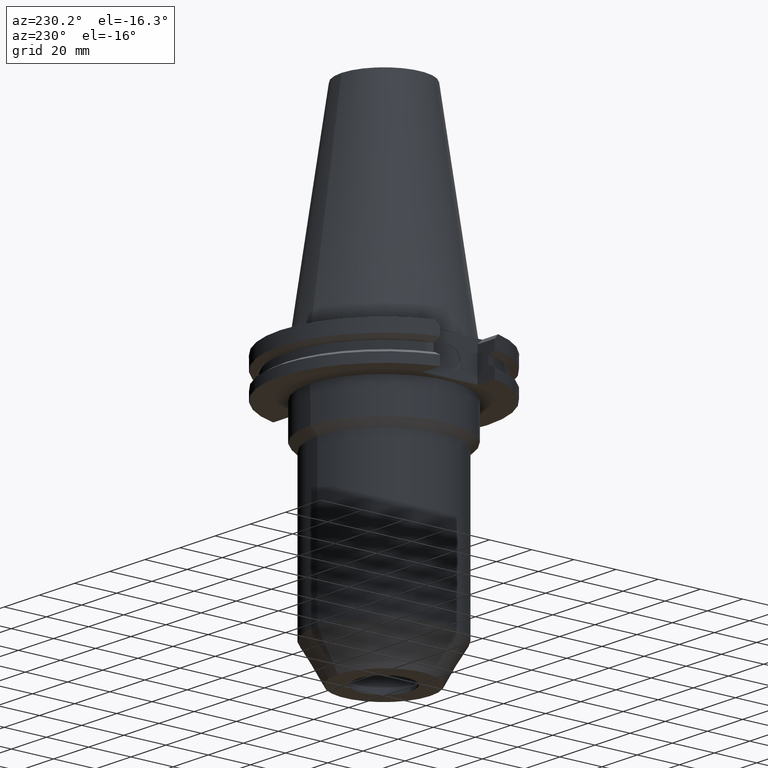
[diagram: clean part render]
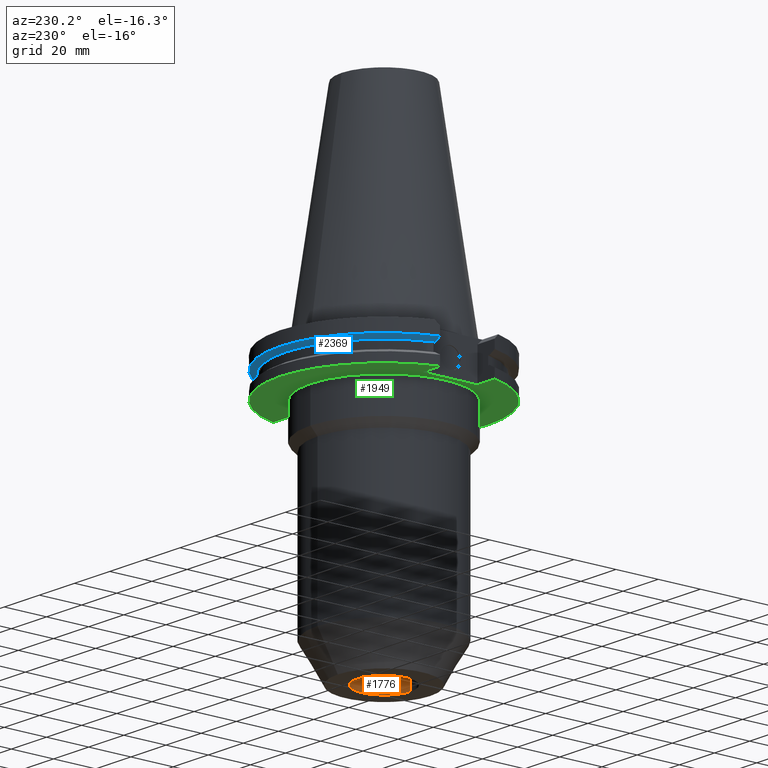
[diagram: same view with three faces highlighted in distinct colors, each labeled with its STEP entity id]
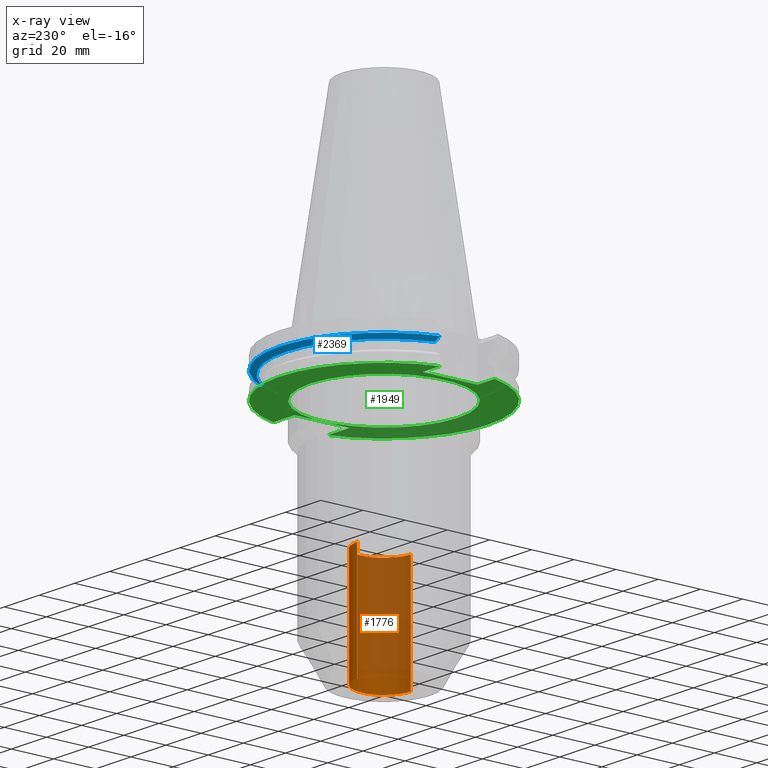
[diagram: x-ray of the same camera — body ghosted, the three highlighted faces saturated]
A machine part, auxiliary view with three faces highlighted in distinct colors.
The next image is the same camera in x-ray (body ghosted, the three faces saturated) — at least one of them is partly hidden behind the body in this view.
Their STEP definitions:

[orange] entity #1776 — the highlighted cylindrical surface (edge-blend (fillet) strip) has radius 12.7 mm, axis along (0, 0, -1).
#324=CARTESIAN_POINT('',(0.E0,2.608865076224E-14,-7.5E1));
#325=DIRECTION('',(0.E0,0.E0,1.E0));
#326=DIRECTION('',(0.E0,-1.E0,0.E0));
#327=AXIS2_PLACEMENT_3D('',#324,#325,#326);
#340=DIRECTION('',(0.E0,0.E0,1.E0));
#341=VECTOR('',#340,5.2E1);
#342=CARTESIAN_POINT('',(0.E0,1.27E1,-1.27E2));
#343=LINE('',#342,#341);
#347=DIRECTION('',(0.E0,0.E0,1.E0));
#348=VECTOR('',#347,5.2E1);
#349=CARTESIAN_POINT('',(0.E0,-1.27E1,-1.27E2));
#350=LINE('',#349,#348);
#378=CARTESIAN_POINT('',(0.E0,2.608865076224E-14,-1.27E2));
#379=DIRECTION('',(0.E0,0.E0,-1.E0));
#380=DIRECTION('',(0.E0,1.E0,0.E0));
#381=AXIS2_PLACEMENT_3D('',#378,#379,#380);
#1310=CARTESIAN_POINT('',(0.E0,-1.27E1,-7.5E1));
#1311=CARTESIAN_POINT('',(0.E0,1.27E1,-7.5E1));
#1312=VERTEX_POINT('',#1310);
#1313=VERTEX_POINT('',#1311);
#1314=CARTESIAN_POINT('',(0.E0,1.27E1,-1.27E2));
#1315=VERTEX_POINT('',#1314);
#1316=CARTESIAN_POINT('',(0.E0,-1.27E1,-1.27E2));
#1317=VERTEX_POINT('',#1316);
#1762=CARTESIAN_POINT('',(0.E0,2.608865076224E-14,1.1303E2));
#1763=DIRECTION('',(0.E0,0.E0,-1.E0));
#1764=DIRECTION('',(0.E0,-1.E0,0.E0));
#1765=AXIS2_PLACEMENT_3D('',#1762,#1763,#1764);
#1766=CYLINDRICAL_SURFACE('',#1765,1.27E1);
#1768=ORIENTED_EDGE('',*,*,#1767,.T.);
#1769=ORIENTED_EDGE('',*,*,#1755,.F.);
#1771=ORIENTED_EDGE('',*,*,#1770,.F.);
#1773=ORIENTED_EDGE('',*,*,#1772,.F.);
#1774=EDGE_LOOP('',(#1768,#1769,#1771,#1773));
#1775=FACE_OUTER_BOUND('',#1774,.F.);
#328=CIRCLE('',#327,1.27E1);
#382=CIRCLE('',#381,1.27E1);
#1755=EDGE_CURVE('',#1312,#1313,#328,.T.);
#1767=EDGE_CURVE('',#1315,#1313,#343,.T.);
#1770=EDGE_CURVE('',#1317,#1312,#350,.T.);
#1772=EDGE_CURVE('',#1315,#1317,#382,.T.);
#1776=ADVANCED_FACE('',(#1775),#1766,.F.);

[blue] entity #2369 — the highlighted conical surface has half-angle 60 deg.
#1064=CARTESIAN_POINT('',(4.458657636813E1,1.2955E1,-9.207500000001E0));
#1065=CARTESIAN_POINT('',(4.490806163993E1,1.2955E1,-9.029261766981E0));
#1066=CARTESIAN_POINT('',(4.555077636711E1,1.2955E1,-8.672605903566E0));
#1067=CARTESIAN_POINT('',(4.651414584907E1,1.2955E1,-8.137199213206E0));
#1068=CARTESIAN_POINT('',(4.715593427837E1,1.2955E1,-7.780001752702E0));
#1069=CARTESIAN_POINT('',(4.747671146204E1,1.2955E1,-7.601333230925E0));
#1074=CARTESIAN_POINT('',(0.E0,1.121722380079E-14,-7.601333230926E0));
#1075=DIRECTION('',(0.E0,0.E0,1.E0));
#1076=DIRECTION('',(9.647287063661E-1,2.632461264923E-1,0.E0));
#1077=AXIS2_PLACEMENT_3D('',#1074,#1075,#1076);
#1082=CARTESIAN_POINT('',(0.E0,1.121722380079E-14,-7.601333230926E0));
#1083=DIRECTION('',(0.E0,0.E0,1.E0));
#1084=DIRECTION('',(0.E0,1.E0,0.E0));
#1085=AXIS2_PLACEMENT_3D('',#1082,#1083,#1084);
#1090=CARTESIAN_POINT('',(-4.747671146204E1,1.2955E1,-7.601333230925E0));
#1091=CARTESIAN_POINT('',(-4.715593427836E1,1.2955E1,-7.780001752709E0));
#1092=CARTESIAN_POINT('',(-4.651414584905E1,1.2955E1,-8.137199213222E0));
#1093=CARTESIAN_POINT('',(-4.555077636708E1,1.2955E1,-8.672605903582E0));
#1094=CARTESIAN_POINT('',(-4.490806163991E1,1.2955E1,-9.029261766988E0));
#1095=CARTESIAN_POINT('',(-4.458657636813E1,1.2955E1,-9.207500000001E0));
#1107=CARTESIAN_POINT('',(0.E0,1.121722380079E-14,-9.207500000003E0));
#1108=DIRECTION('',(0.E0,0.E0,1.E0));
#1109=DIRECTION('',(9.602855947900E-1,2.790189535476E-1,0.E0));
#1110=AXIS2_PLACEMENT_3D('',#1107,#1108,#1109);
#1115=CARTESIAN_POINT('',(0.E0,1.121722380079E-14,-9.207500000003E0));
#1116=DIRECTION('',(0.E0,0.E0,1.E0));
#1117=DIRECTION('',(0.E0,1.E0,0.E0));
#1118=AXIS2_PLACEMENT_3D('',#1115,#1116,#1117);
#1416=CARTESIAN_POINT('',(-4.458657636813E1,1.2955E1,-9.207500000001E0));
#1417=VERTEX_POINT('',#1416);
#1418=VERTEX_POINT('',#1090);
#1440=CARTESIAN_POINT('',(4.458657636813E1,1.2955E1,-9.207500000001E0));
#1441=VERTEX_POINT('',#1440);
#1442=CARTESIAN_POINT('',(3.687402563152E-14,4.643053755053E1,
-9.207500000003E0));
#1443=VERTEX_POINT('',#1442);
#1446=VERTEX_POINT('',#1069);
#1447=CARTESIAN_POINT('',(0.E0,4.92125E1,-7.601333230926E0));
#1448=VERTEX_POINT('',#1447);
#2354=CARTESIAN_POINT('',(0.E0,1.121722380079E-14,-8.404416615464E0));
#2355=DIRECTION('',(0.E0,0.E0,1.E0));
#2356=DIRECTION('',(0.E0,1.E0,0.E0));
#2357=AXIS2_PLACEMENT_3D('',#2354,#2355,#2356);
#2358=CONICAL_SURFACE('',#2357,4.782151877527E1,6.E1);
#2359=ORIENTED_EDGE('',*,*,#2116,.T.);
#2360=ORIENTED_EDGE('',*,*,#2160,.T.);
#2361=ORIENTED_EDGE('',*,*,#2158,.T.);
#2362=ORIENTED_EDGE('',*,*,#2078,.T.);
#2364=ORIENTED_EDGE('',*,*,#2363,.F.);
#2366=ORIENTED_EDGE('',*,*,#2365,.F.);
#2367=EDGE_LOOP('',(#2359,#2360,#2361,#2362,#2364,#2366));
#2368=FACE_OUTER_BOUND('',#2367,.F.);
#1070=B_SPLINE_CURVE_WITH_KNOTS('',3,(#1064,#1065,#1066,#1067,#1068,#1069),
.UNSPECIFIED.,.F.,.F.,(4,1,1,4),(0.E0,3.333333333333E-1,6.666666666667E-1,1.E0),
.UNSPECIFIED.);
#1078=CIRCLE('',#1077,4.92125E1);
#1086=CIRCLE('',#1085,4.92125E1);
#1096=B_SPLINE_CURVE_WITH_KNOTS('',3,(#1090,#1091,#1092,#1093,#1094,#1095),
.UNSPECIFIED.,.F.,.F.,(4,1,1,4),(0.E0,3.333333333333E-1,6.666666666667E-1,1.E0),
.UNSPECIFIED.);
#1111=CIRCLE('',#1110,4.643053755053E1);
#1119=CIRCLE('',#1118,4.643053755053E1);
#2078=EDGE_CURVE('',#1418,#1417,#1096,.T.);
#2116=EDGE_CURVE('',#1441,#1446,#1070,.T.);
#2158=EDGE_CURVE('',#1448,#1418,#1086,.T.);
#2160=EDGE_CURVE('',#1446,#1448,#1078,.T.);
#2363=EDGE_CURVE('',#1443,#1417,#1119,.T.);
#2365=EDGE_CURVE('',#1441,#1443,#1111,.T.);
#2369=ADVANCED_FACE('',(#2368),#2358,.T.);

[green] entity #1949 — the highlighted planar face has unit normal (0, 0, -1).
#490=DIRECTION('',(1.E0,1.455229645531E-14,0.E0));
#491=VECTOR('',#490,1.220671146204E1);
#492=CARTESIAN_POINT('',(3.527E1,1.2955E1,-1.905E1));
#493=LINE('',#492,#491);
#497=CARTESIAN_POINT('',(0.E0,2.608865076224E-14,-1.905E1));
#498=DIRECTION('',(0.E0,0.E0,1.E0));
#499=DIRECTION('',(9.647287063661E-1,2.632461264923E-1,0.E0));
#500=AXIS2_PLACEMENT_3D('',#497,#498,#499);
#505=CARTESIAN_POINT('',(0.E0,2.608865076224E-14,-1.905E1));
#506=DIRECTION('',(0.E0,0.E0,1.E0));
#507=DIRECTION('',(0.E0,1.E0,0.E0));
#508=AXIS2_PLACEMENT_3D('',#505,#506,#507);
#513=DIRECTION('',(-1.E0,-1.795085297572E-14,0.E0));
#514=VECTOR('',#513,9.796711462041E0);
#515=CARTESIAN_POINT('',(-3.768E1,-1.2955E1,-1.905E1));
#516=LINE('',#515,#514);
#520=CARTESIAN_POINT('',(0.E0,2.608865076224E-14,-1.905E1));
#521=DIRECTION('',(0.E0,0.E0,1.E0));
#522=DIRECTION('',(-9.647287063661E-1,-2.632461264923E-1,0.E0));
#523=AXIS2_PLACEMENT_3D('',#520,#521,#522);
#528=CARTESIAN_POINT('',(0.E0,2.608865076224E-14,-1.905E1));
#529=DIRECTION('',(0.E0,0.E0,1.E0));
#530=DIRECTION('',(0.E0,-1.E0,0.E0));
#531=AXIS2_PLACEMENT_3D('',#528,#529,#530);
#536=CARTESIAN_POINT('',(0.E0,2.608865076224E-14,-1.905E1));
#537=DIRECTION('',(0.E0,0.E0,-1.E0));
#538=DIRECTION('',(0.E0,-1.E0,0.E0));
#539=AXIS2_PLACEMENT_3D('',#536,#537,#538);
#544=CARTESIAN_POINT('',(0.E0,2.608865076224E-14,-1.905E1));
#545=DIRECTION('',(0.E0,0.E0,-1.E0));
#546=DIRECTION('',(0.E0,1.E0,0.E0));
#547=AXIS2_PLACEMENT_3D('',#544,#545,#546);
#552=DIRECTION('',(0.E0,-1.E0,0.E0));
#553=VECTOR('',#552,2.591E1);
#554=CARTESIAN_POINT('',(3.527E1,1.2955E1,-1.905E1));
#555=LINE('',#554,#553);
#587=DIRECTION('',(1.E0,-1.411572756165E-14,0.E0));
#588=VECTOR('',#587,1.220671146204E1);
#589=CARTESIAN_POINT('',(3.527E1,-1.2955E1,-1.905E1));
#590=LINE('',#589,#588);
#636=DIRECTION('',(0.E0,1.E0,0.E0));
#637=VECTOR('',#636,2.591E1);
#638=CARTESIAN_POINT('',(-3.768E1,-1.2955E1,-1.905E1));
#639=LINE('',#638,#637);
#673=DIRECTION('',(-1.E0,1.813217472295E-14,0.E0));
#674=VECTOR('',#673,9.796711462041E0);
#675=CARTESIAN_POINT('',(-3.768E1,1.2955E1,-1.905E1));
#676=LINE('',#675,#674);
#1334=CARTESIAN_POINT('',(0.E0,3.4925E1,-1.905E1));
#1335=VERTEX_POINT('',#1334);
#1336=CARTESIAN_POINT('',(0.E0,-3.4925E1,-1.905E1));
#1337=VERTEX_POINT('',#1336);
#1338=CARTESIAN_POINT('',(3.527E1,1.2955E1,-1.905E1));
#1339=CARTESIAN_POINT('',(3.527E1,-1.2955E1,-1.905E1));
#1340=VERTEX_POINT('',#1338);
#1341=VERTEX_POINT('',#1339);
#1342=CARTESIAN_POINT('',(4.747671146204E1,1.2955E1,-1.905E1));
#1343=VERTEX_POINT('',#1342);
#1344=CARTESIAN_POINT('',(0.E0,4.92125E1,-1.905E1));
#1345=CARTESIAN_POINT('',(-4.747671146204E1,1.2955E1,-1.905E1));
#1346=VERTEX_POINT('',#1344);
#1347=VERTEX_POINT('',#1345);
#1348=CARTESIAN_POINT('',(-3.768E1,1.2955E1,-1.905E1));
#1349=VERTEX_POINT('',#1348);
#1350=CARTESIAN_POINT('',(-3.768E1,-1.2955E1,-1.905E1));
#1351=VERTEX_POINT('',#1350);
#1352=CARTESIAN_POINT('',(-4.747671146204E1,-1.2955E1,-1.905E1));
#1353=VERTEX_POINT('',#1352);
#1354=CARTESIAN_POINT('',(0.E0,-4.92125E1,-1.905E1));
#1355=CARTESIAN_POINT('',(4.747671146204E1,-1.2955E1,-1.905E1));
#1356=VERTEX_POINT('',#1354);
#1357=VERTEX_POINT('',#1355);
#1918=CARTESIAN_POINT('',(0.E0,0.E0,-1.905E1));
#1919=DIRECTION('',(0.E0,0.E0,-1.E0));
#1920=DIRECTION('',(0.E0,-1.E0,0.E0));
#1921=AXIS2_PLACEMENT_3D('',#1918,#1919,#1920);
#1922=PLANE('',#1921);
#1924=ORIENTED_EDGE('',*,*,#1923,.F.);
#1926=ORIENTED_EDGE('',*,*,#1925,.T.);
#1928=ORIENTED_EDGE('',*,*,#1927,.T.);
#1930=ORIENTED_EDGE('',*,*,#1929,.T.);
#1932=ORIENTED_EDGE('',*,*,#1931,.F.);
#1934=ORIENTED_EDGE('',*,*,#1933,.F.);
#1936=ORIENTED_EDGE('',*,*,#1935,.T.);
#1938=ORIENTED_EDGE('',*,*,#1937,.T.);
#1940=ORIENTED_EDGE('',*,*,#1939,.T.);
#1942=ORIENTED_EDGE('',*,*,#1941,.F.);
#1943=EDGE_LOOP('',(#1924,#1926,#1928,#1930,#1932,#1934,#1936,#1938,#1940,
#1942));
#1944=FACE_OUTER_BOUND('',#1943,.F.);
#1945=ORIENTED_EDGE('',*,*,#1897,.T.);
#1946=ORIENTED_EDGE('',*,*,#1913,.T.);
#1947=EDGE_LOOP('',(#1945,#1946));
#1948=FACE_BOUND('',#1947,.F.);
#501=CIRCLE('',#500,4.92125E1);
#509=CIRCLE('',#508,4.92125E1);
#524=CIRCLE('',#523,4.92125E1);
#532=CIRCLE('',#531,4.92125E1);
#540=CIRCLE('',#539,3.4925E1);
#548=CIRCLE('',#547,3.4925E1);
#1897=EDGE_CURVE('',#1337,#1335,#540,.T.);
#1913=EDGE_CURVE('',#1335,#1337,#548,.T.);
#1923=EDGE_CURVE('',#1340,#1341,#555,.T.);
#1925=EDGE_CURVE('',#1340,#1343,#493,.T.);
#1927=EDGE_CURVE('',#1343,#1346,#501,.T.);
#1929=EDGE_CURVE('',#1346,#1347,#509,.T.);
#1931=EDGE_CURVE('',#1349,#1347,#676,.T.);
#1933=EDGE_CURVE('',#1351,#1349,#639,.T.);
#1935=EDGE_CURVE('',#1351,#1353,#516,.T.);
#1937=EDGE_CURVE('',#1353,#1356,#524,.T.);
#1939=EDGE_CURVE('',#1356,#1357,#532,.T.);
#1941=EDGE_CURVE('',#1341,#1357,#590,.T.);
#1949=ADVANCED_FACE('',(#1944,#1948),#1922,.T.);